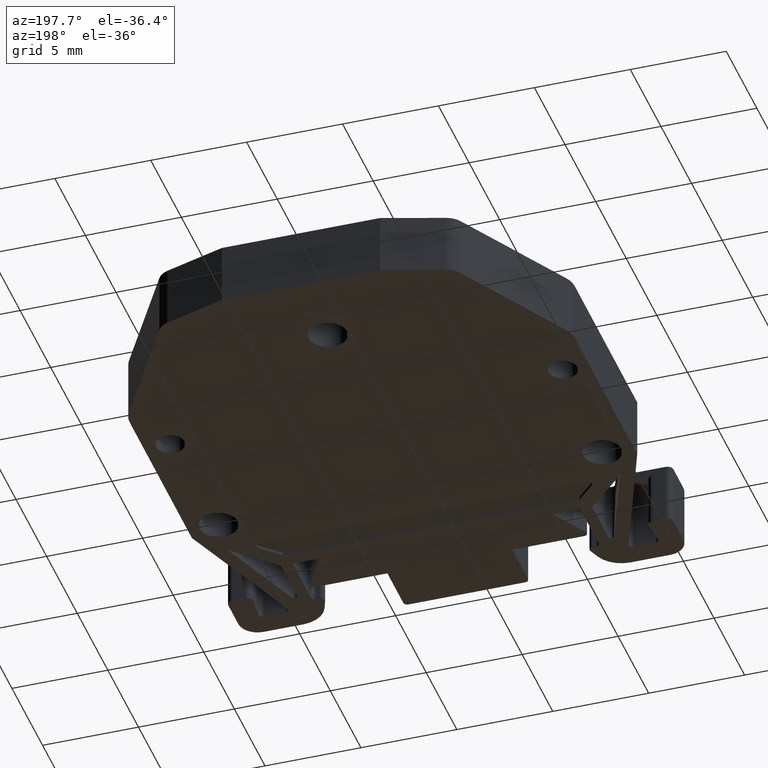
[diagram: clean part render]
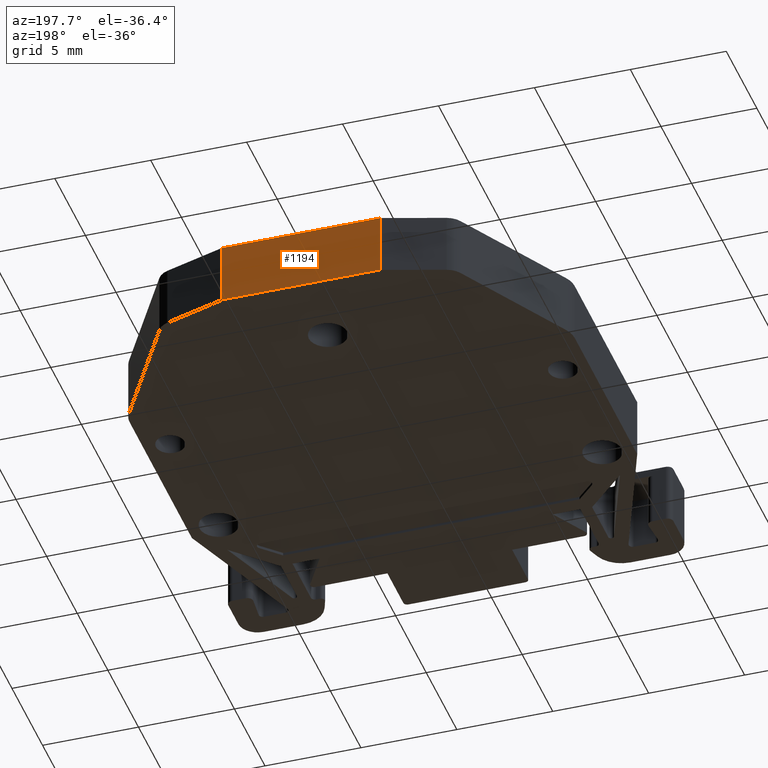
[diagram: same view with one face highlighted and labeled with its STEP entity id]
A machine part, auxiliary view. The second image highlights one B-rep face of the part: STEP entity #1194.
In plain terms, the highlighted planar face has unit normal (0, -1, 0).
Its self-contained STEP definition (entity closure, byte-faithful):
#263 = FACE_OUTER_BOUND ( 'NONE', #1757, .T. ) ;
#266 = PLANE ( 'NONE',  #1382 ) ;
#282 = DIRECTION ( 'NONE',  ( 6.214135429438520400E-014, -1.000000000000000000, 0.0000000000000000000 ) ) ;
#293 = DIRECTION ( 'NONE',  ( 1.000000000000000000, 6.214135429438520400E-014, 0.0000000000000000000 ) ) ;
#297 = CARTESIAN_POINT ( 'NONE',  ( 231.1956566263065200, 487.1003766282140600, 8.439999999999999500 ) ) ;
#575 = CARTESIAN_POINT ( 'NONE',  ( 227.1660676076454900, 487.1003766282140100, 11.63999999999999900 ) ) ;
#630 = CARTESIAN_POINT ( 'NONE',  ( 235.4058080792569300, 487.1003766282140600, 8.439999999999999500 ) ) ;
#631 = CARTESIAN_POINT ( 'NONE',  ( 227.1660676076455400, 487.1003766282136700, 8.439999999999999500 ) ) ;
#723 = CARTESIAN_POINT ( 'NONE',  ( 235.4058080792569600, 487.1003766282140100, 11.63999999999999900 ) ) ;
#873 = EDGE_CURVE ( 'NONE', #1550, #1546, #3435, .T. ) ;
#886 = EDGE_CURVE ( 'NONE', #1546, #1538, #3473, .T. ) ;
#908 = EDGE_CURVE ( 'NONE', #1635, #1538, #3524, .T. ) ;
#944 = EDGE_CURVE ( 'NONE', #1550, #1635, #2648, .T. ) ;
#1194 = ADVANCED_FACE ( 'NONE', ( #263 ), #266, .F. ) ;
#1382 = AXIS2_PLACEMENT_3D ( 'NONE', #297, #282, #293 ) ;
#1538 = VERTEX_POINT ( 'NONE', #630 ) ;
#1546 = VERTEX_POINT ( 'NONE', #631 ) ;
#1550 = VERTEX_POINT ( 'NONE', #575 ) ;
#1635 = VERTEX_POINT ( 'NONE', #723 ) ;
#1757 = EDGE_LOOP ( 'NONE', ( #3346, #3303, #3347, #3315 ) ) ;
#2381 = VECTOR ( 'NONE', #3428, 1000.000000000000000 ) ;
#2409 = VECTOR ( 'NONE', #3465, 1000.000000000000000 ) ;
#2462 = VECTOR ( 'NONE', #3549, 1000.000000000000000 ) ;
#2508 = VECTOR ( 'NONE', #2644, 1000.000000000000000 ) ;
#2644 = DIRECTION ( 'NONE',  ( 1.000000000000000000, -0.0000000000000000000, 0.0000000000000000000 ) ) ;
#2648 = LINE ( 'NONE', #2661, #2508 ) ;
#2661 = CARTESIAN_POINT ( 'NONE',  ( 231.1956566263090200, 487.1003766282140600, 11.63999999999999900 ) ) ;
#3303 = ORIENTED_EDGE ( 'NONE', *, *, #886, .F. ) ;
#3315 = ORIENTED_EDGE ( 'NONE', *, *, #944, .T. ) ;
#3346 = ORIENTED_EDGE ( 'NONE', *, *, #908, .T. ) ;
#3347 = ORIENTED_EDGE ( 'NONE', *, *, #873, .F. ) ;
#3428 = DIRECTION ( 'NONE',  ( 0.0000000000000000000, -0.0000000000000000000, -1.000000000000000000 ) ) ;
#3430 = CARTESIAN_POINT ( 'NONE',  ( 227.1660676076454900, 487.1003766282138400, 8.439999999999999500 ) ) ;
#3435 = LINE ( 'NONE', #3430, #2381 ) ;
#3465 = DIRECTION ( 'NONE',  ( 1.000000000000000000, 6.214135429438520400E-014, 0.0000000000000000000 ) ) ;
#3473 = LINE ( 'NONE', #3480, #2409 ) ;
#3480 = CARTESIAN_POINT ( 'NONE',  ( 231.1956566263065200, 487.1003766282140600, 8.439999999999999500 ) ) ;
#3524 = LINE ( 'NONE', #3550, #2462 ) ;
#3549 = DIRECTION ( 'NONE',  ( -0.0000000000000000000, -0.0000000000000000000, -1.000000000000000000 ) ) ;
#3550 = CARTESIAN_POINT ( 'NONE',  ( 235.4058080792569300, 487.1003766282138900, 8.439999999999999500 ) ) ;